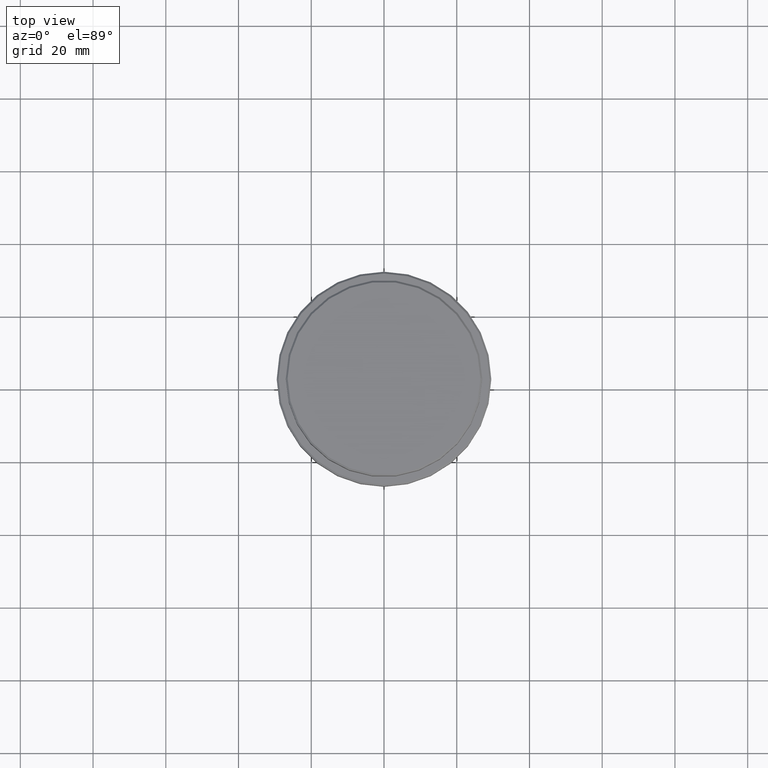
[diagram: clean part render]
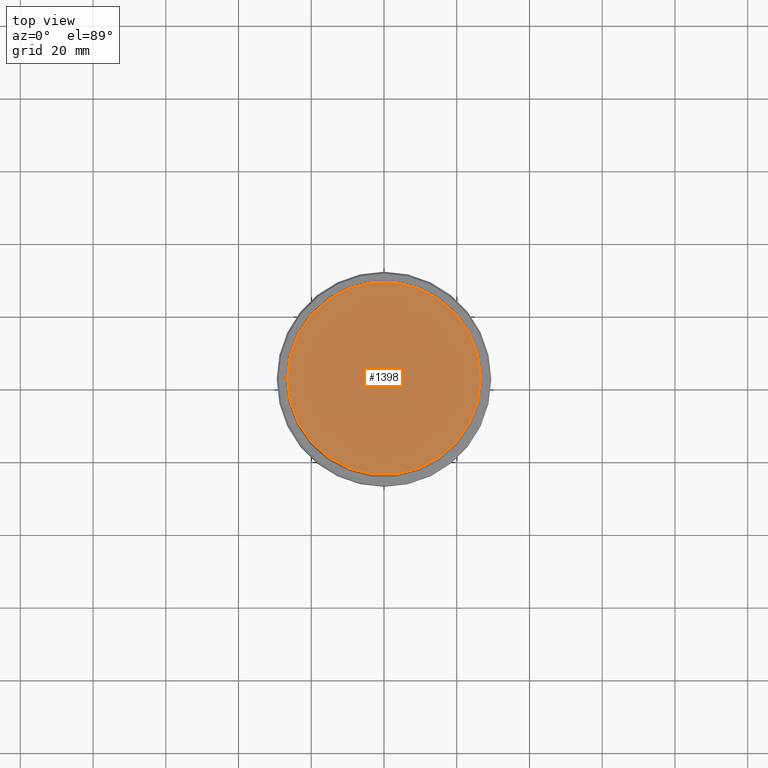
[diagram: same view with one face highlighted and labeled with its STEP entity id]
A machine part, top view. The second image highlights one B-rep face of the part: STEP entity #1398.
In plain terms, the highlighted planar face has unit normal (0, -0, 1).
Its self-contained STEP definition (entity closure, byte-faithful):
#288 = VERTEX_POINT ( 'NONE', #724 ) ;
#305 = CARTESIAN_POINT ( 'NONE',  ( -26.49999999999996803, 0.000000000000000000, 0.000000000000000000 ) ) ;
#318 = CARTESIAN_POINT ( 'NONE',  ( 0.000000000000000000, 0.000000000000000000, 0.000000000000000000 ) ) ;
#415 = AXIS2_PLACEMENT_3D ( 'NONE', #818, #1163, #1251 ) ;
#521 = FACE_OUTER_BOUND ( 'NONE', #1287, .T. ) ;
#551 = CIRCLE ( 'NONE', #1368, 26.49999999999996803 ) ;
#580 = DIRECTION ( 'NONE',  ( 1.000000000000000000, 0.000000000000000000, 0.000000000000000000 ) ) ;
#618 = PLANE ( 'NONE',  #415 ) ;
#693 = CIRCLE ( 'NONE', #1300, 26.49999999999996803 ) ;
#724 = CARTESIAN_POINT ( 'NONE',  ( 26.49999999999996803, 3.275930187719167974E-15, 0.000000000000000000 ) ) ;
#818 = CARTESIAN_POINT ( 'NONE',  ( 0.000000000000000000, 0.000000000000000000, 0.000000000000000000 ) ) ;
#902 = EDGE_CURVE ( 'NONE', #288, #1108, #551, .T. ) ;
#967 = DIRECTION ( 'NONE',  ( 1.000000000000000000, 0.000000000000000000, 0.000000000000000000 ) ) ;
#1003 = DIRECTION ( 'NONE',  ( -0.000000000000000000, -0.000000000000000000, 1.000000000000000000 ) ) ;
#1108 = VERTEX_POINT ( 'NONE', #305 ) ;
#1163 = DIRECTION ( 'NONE',  ( 0.000000000000000000, -0.000000000000000000, 1.000000000000000000 ) ) ;
#1184 = EDGE_CURVE ( 'NONE', #1108, #288, #693, .T. ) ;
#1200 = DIRECTION ( 'NONE',  ( -0.000000000000000000, -0.000000000000000000, 1.000000000000000000 ) ) ;
#1202 = ORIENTED_EDGE ( 'NONE', *, *, #902, .T. ) ;
#1216 = CARTESIAN_POINT ( 'NONE',  ( 0.000000000000000000, 0.000000000000000000, 0.000000000000000000 ) ) ;
#1251 = DIRECTION ( 'NONE',  ( 1.000000000000000000, 0.000000000000000000, 0.000000000000000000 ) ) ;
#1287 = EDGE_LOOP ( 'NONE', ( #1414, #1202 ) ) ;
#1300 = AXIS2_PLACEMENT_3D ( 'NONE', #318, #1200, #967 ) ;
#1368 = AXIS2_PLACEMENT_3D ( 'NONE', #1216, #1003, #580 ) ;
#1398 = ADVANCED_FACE ( 'NONE', ( #521 ), #618, .T. ) ;
#1414 = ORIENTED_EDGE ( 'NONE', *, *, #1184, .T. ) ;